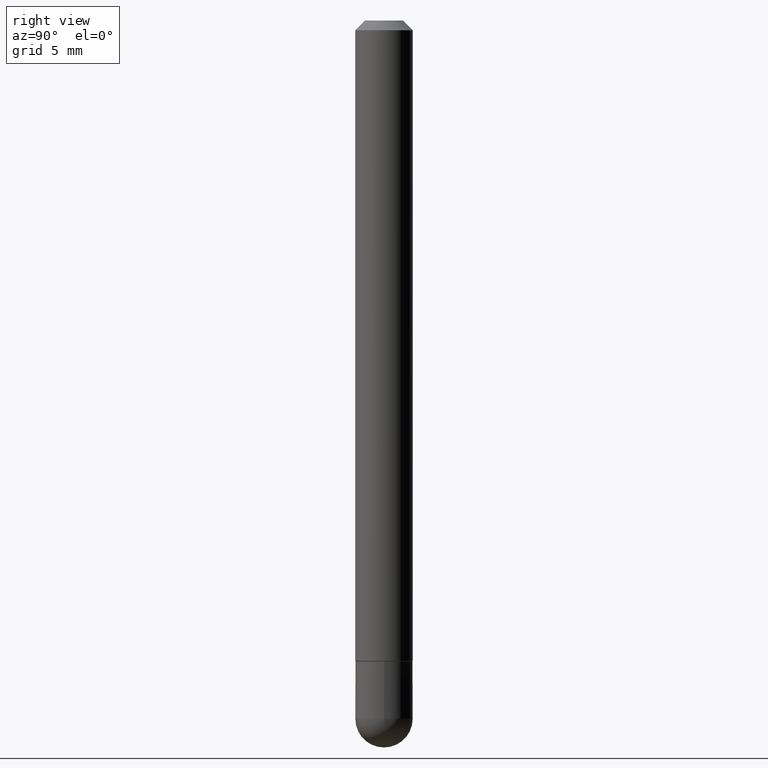
[diagram: clean part render]
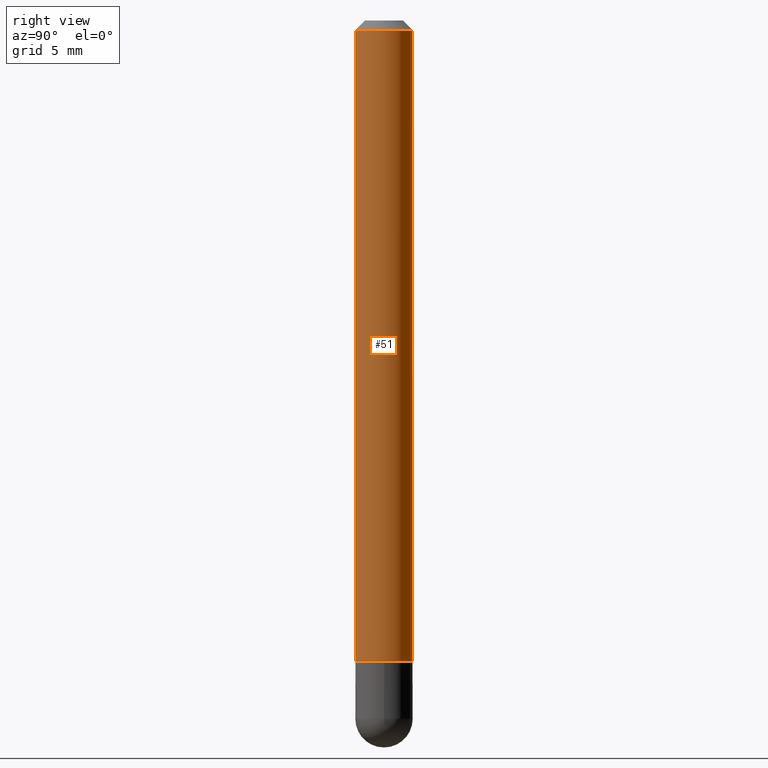
[diagram: same view with one face highlighted and labeled with its STEP entity id]
A machine part, right view. The second image highlights one B-rep face of the part: STEP entity #51.
In plain terms, the highlighted cylindrical surface (edge-blend (fillet) strip) has radius 1.4999 mm, axis along (-0, 0, 1).
Its self-contained STEP definition (entity closure, byte-faithful):
#18 = EDGE_CURVE ( 'NONE', #298, #287, #182, .T. ) ;
#21 = LINE ( 'NONE', #373, #313 ) ;
#28 = DIRECTION ( 'NONE',  ( -6.982962677686265922E-15, -1.000000000000000000, 4.626330217890355926E-15 ) ) ;
#42 = VERTEX_POINT ( 'NONE', #243 ) ;
#51 = ADVANCED_FACE ( 'NONE', ( #147 ), #149, .T. ) ;
#59 = DIRECTION ( 'NONE',  ( -6.982962677686265922E-15, -1.000000000000000000, 3.490808380054938555E-15 ) ) ;
#60 = CARTESIAN_POINT ( 'NONE',  ( 4.195754854663396902E-16, 0.05905000000000008159, -2.061322348422444104E-16 ) ) ;
#64 = AXIS2_PLACEMENT_3D ( 'NONE', #178, #152, #28 ) ;
#95 = EDGE_CURVE ( 'NONE', #404, #287, #132, .T. ) ;
#122 = EDGE_CURVE ( 'NONE', #42, #298, #180, .T. ) ;
#132 = CIRCLE ( 'NONE', #353, 0.05905000000000000526 ) ;
#136 = ORIENTED_EDGE ( 'NONE', *, *, #18, .T. ) ;
#140 = VECTOR ( 'NONE', #216, 39.37007874015748143 ) ;
#147 = FACE_OUTER_BOUND ( 'NONE', #326, .T. ) ;
#149 = CYLINDRICAL_SURFACE ( 'NONE', #187, 0.05905000000000008159 ) ;
#152 = DIRECTION ( 'NONE',  ( -2.445938730795303738E-29, 3.490808380054938555E-15, 1.000000000000000000 ) ) ;
#153 = DIRECTION ( 'NONE',  ( -2.445938730795303738E-29, 3.490808380054938555E-15, 1.000000000000000000 ) ) ;
#173 = ORIENTED_EDGE ( 'NONE', *, *, #122, .T. ) ;
#178 = CARTESIAN_POINT ( 'NONE',  ( 3.223502653315129586E-29, -4.600536364074402946E-15, -1.317899999999999627 ) ) ;
#180 = CIRCLE ( 'NONE', #64, 0.05905000000000017180 ) ;
#182 = LINE ( 'NONE', #60, #140 ) ;
#187 = AXIS2_PLACEMENT_3D ( 'NONE', #351, #153, #59 ) ;
#192 = EDGE_CURVE ( 'NONE', #42, #404, #21, .T. ) ;
#200 = CARTESIAN_POINT ( 'NONE',  ( 4.123439461173745257E-16, 0.05904999999999994281, -0.02000000000000022593 ) ) ;
#214 = CARTESIAN_POINT ( 'NONE',  ( 4.195754854663563056E-16, 0.05904999999999557131, -1.317899999999999849 ) ) ;
#216 = DIRECTION ( 'NONE',  ( -2.445938730795303738E-29, 3.490808380054938555E-15, 1.000000000000000000 ) ) ;
#233 = CARTESIAN_POINT ( 'NONE',  ( -4.051124067684084738E-16, -0.05905000000000007465, -0.01999999999999981654 ) ) ;
#234 = DIRECTION ( 'NONE',  ( -2.445938730795303738E-29, 3.490808380054938555E-15, 1.000000000000000000 ) ) ;
#243 = CARTESIAN_POINT ( 'NONE',  ( -4.123439461173429713E-16, -0.05905000000000477228, -1.317899999999999405 ) ) ;
#265 = ORIENTED_EDGE ( 'NONE', *, *, #95, .F. ) ;
#275 = DIRECTION ( 'NONE',  ( -6.982962677686265922E-15, -1.000000000000000000, 3.469747663417777002E-15 ) ) ;
#284 = ORIENTED_EDGE ( 'NONE', *, *, #192, .F. ) ;
#287 = VERTEX_POINT ( 'NONE', #200 ) ;
#298 = VERTEX_POINT ( 'NONE', #214 ) ;
#313 = VECTOR ( 'NONE', #234, 39.37007874015748143 ) ;
#326 = EDGE_LOOP ( 'NONE', ( #173, #136, #265, #284 ) ) ;
#351 = CARTESIAN_POINT ( 'NONE',  ( 0.000000000000000000, 0.000000000000000000, 0.000000000000000000 ) ) ;
#353 = AXIS2_PLACEMENT_3D ( 'NONE', #411, #410, #275 ) ;
#373 = CARTESIAN_POINT ( 'NONE',  ( -4.123439461173745750E-16, -0.05905000000000008159, 2.061322348422444104E-16 ) ) ;
#404 = VERTEX_POINT ( 'NONE', #233 ) ;
#410 = DIRECTION ( 'NONE',  ( -2.445938730795303738E-29, 3.490808380054938555E-15, 1.000000000000000000 ) ) ;
#411 = CARTESIAN_POINT ( 'NONE',  ( 4.891877461590611925E-31, -6.981616760109884161E-17, -0.02000000000000002123 ) ) ;